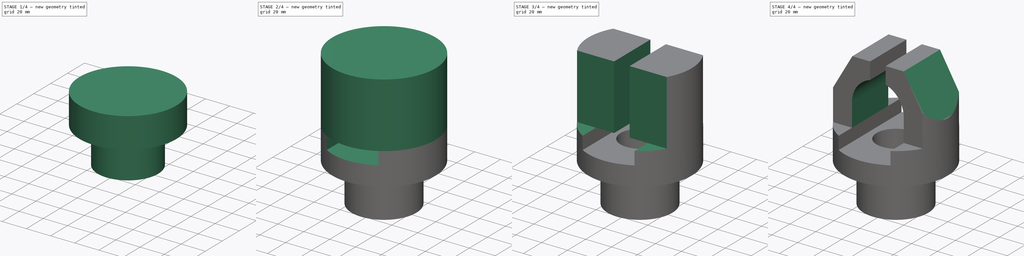
[diagram: build sequence overview — one tinted view per stage of 4, left to right]
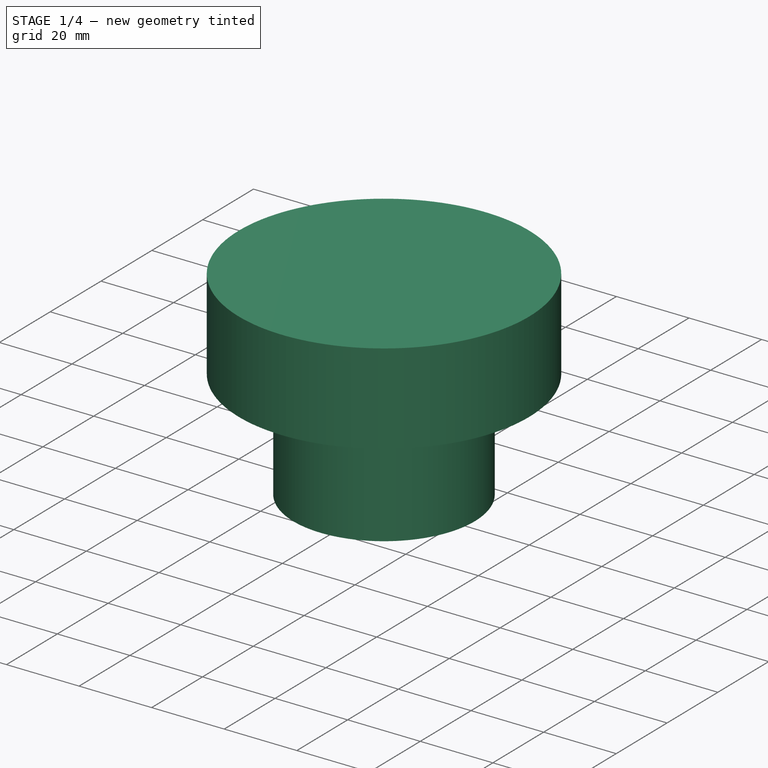
[diagram: stage 1 of 4 — iso view after this stage's code; geometry added in this stage tinted green]
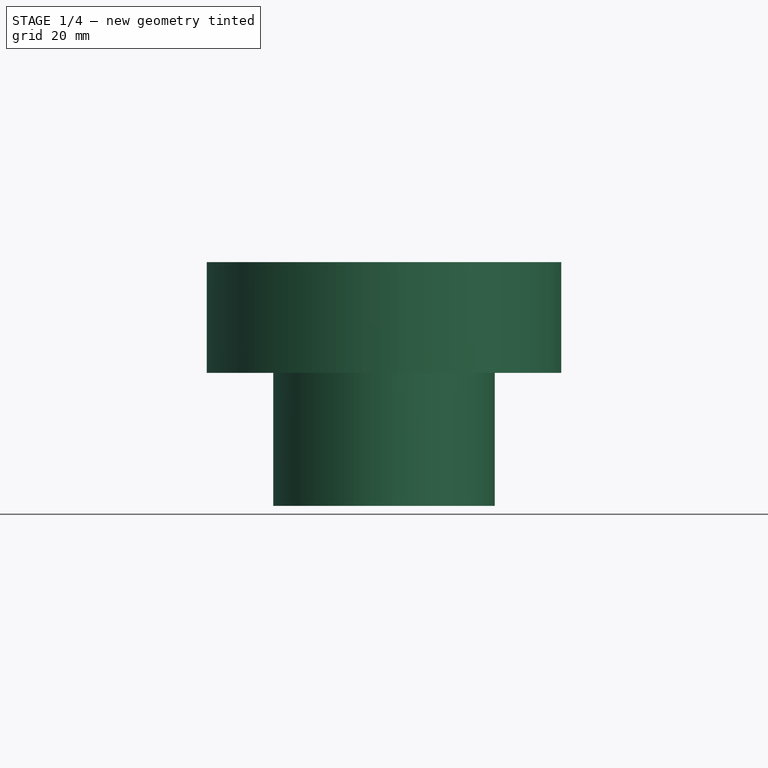
[diagram: stage 1 of 4 — front view after this stage's code; geometry added in this stage tinted green]
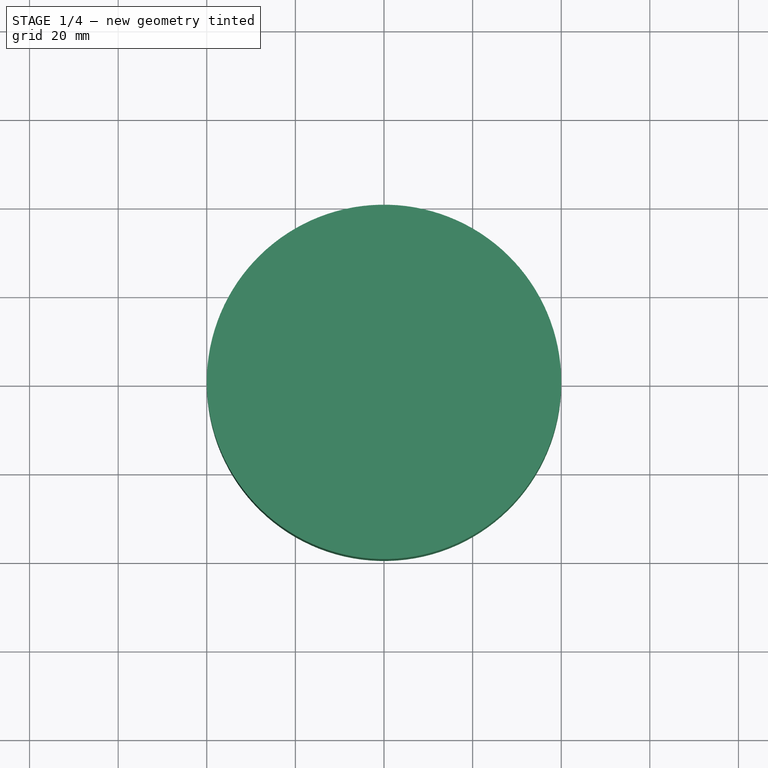
[diagram: stage 1 of 4 — top view after this stage's code; geometry added in this stage tinted green]
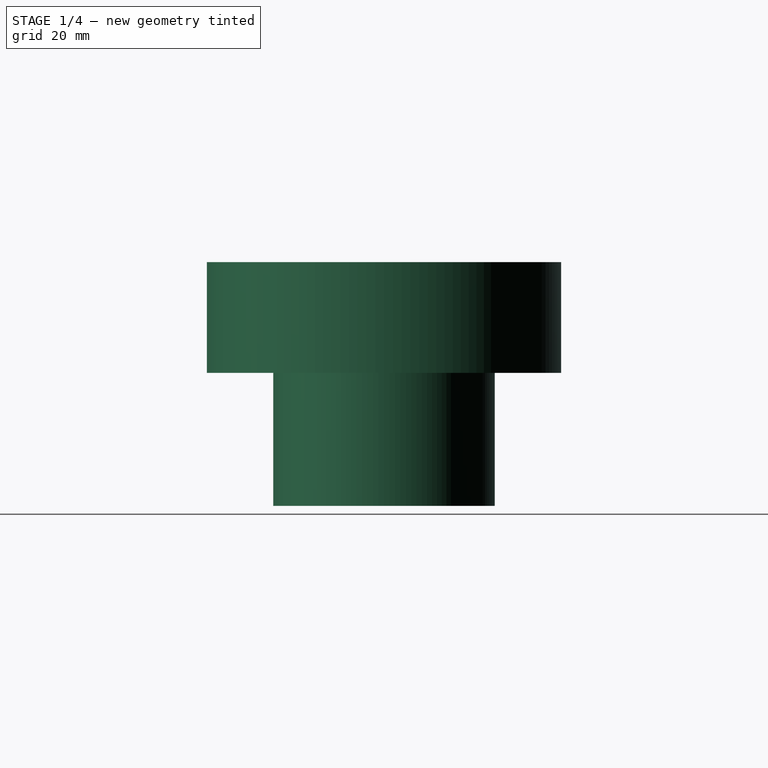
[diagram: stage 1 of 4 — right view after this stage's code; geometry added in this stage tinted green]
FCSTD DOCUMENT  (FreeCAD 0.16R)
Label: ejer11-3
License: All rights reserved
LicenseURL: http://en.wikipedia.org/wiki/All_rights_reserved
objects: Sketcher::SketchObject×10, PartDesign::Pocket×7, PartDesign::Pad×3
note: 30 computed .brp shape members not serialized (recipe doc carries the construction recipe); baked Part::Feature solids carry a one-line shape summary decoded from their .brp

FEATURE [Sketcher::SketchObject] Sketch
  sketch-geometry (1):
    g0: Circle CenterX=0 CenterY=0 CenterZ=0 NormalX=0 NormalY=0 NormalZ=1 Radius=25
  constraints (2):
    c: Coincident(g0,g-1)
    c: Radius(g0) = 25
FEATURE [PartDesign::Pad] Pad
  Length = 30
  Length2 = 100
  Sketch = -> Sketch
  Type = 0
FEATURE [Sketcher::SketchObject] Sketch001
  Placement = pos=(0,0,30) rot=(0,0,1;0rad)
  Support = -> Pad [Face3]
  sketch-geometry (1):
    g0: Circle CenterX=0 CenterY=0 CenterZ=0 NormalX=0 NormalY=0 NormalZ=1 Radius=40
  constraints (2):
    c: Coincident(g0,g-1)
    c: Radius(g0) = 40
FEATURE [PartDesign::Pad] Pad001
  Length = 25
  Length2 = 100
  Sketch = -> Sketch001
  Type = 0
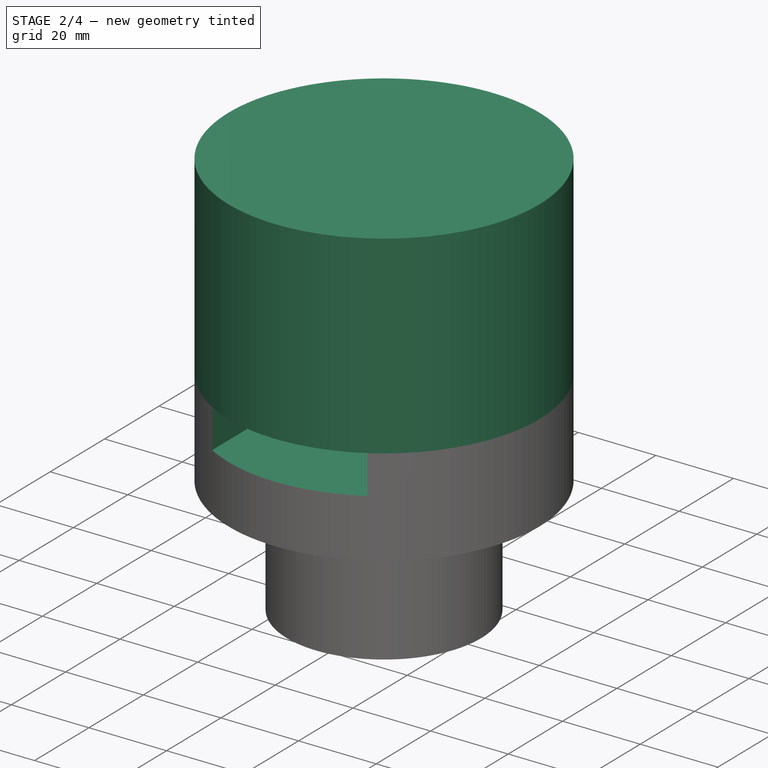
[diagram: stage 2 of 4 — iso view after this stage's code; geometry added in this stage tinted green]
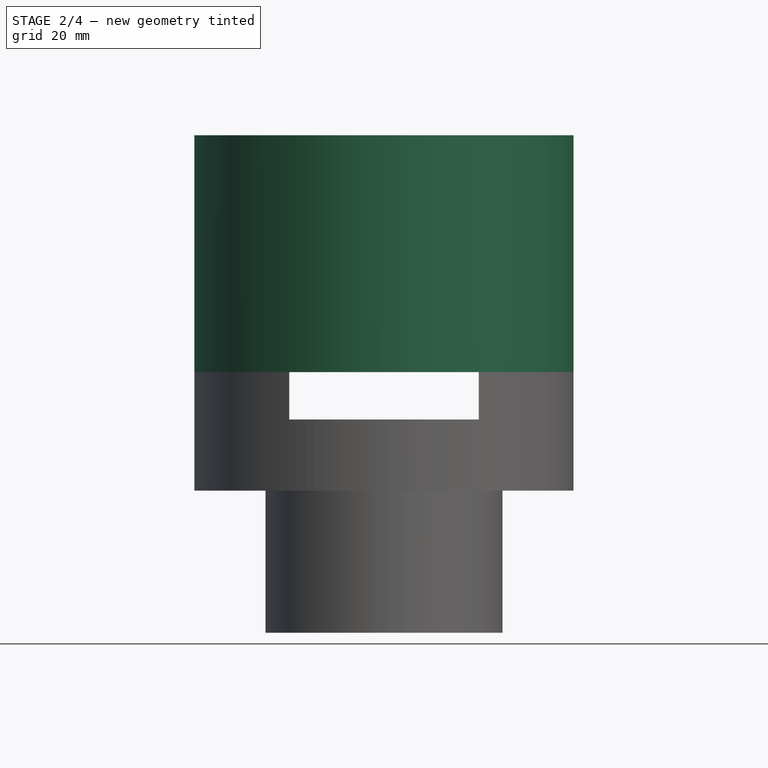
[diagram: stage 2 of 4 — front view after this stage's code; geometry added in this stage tinted green]
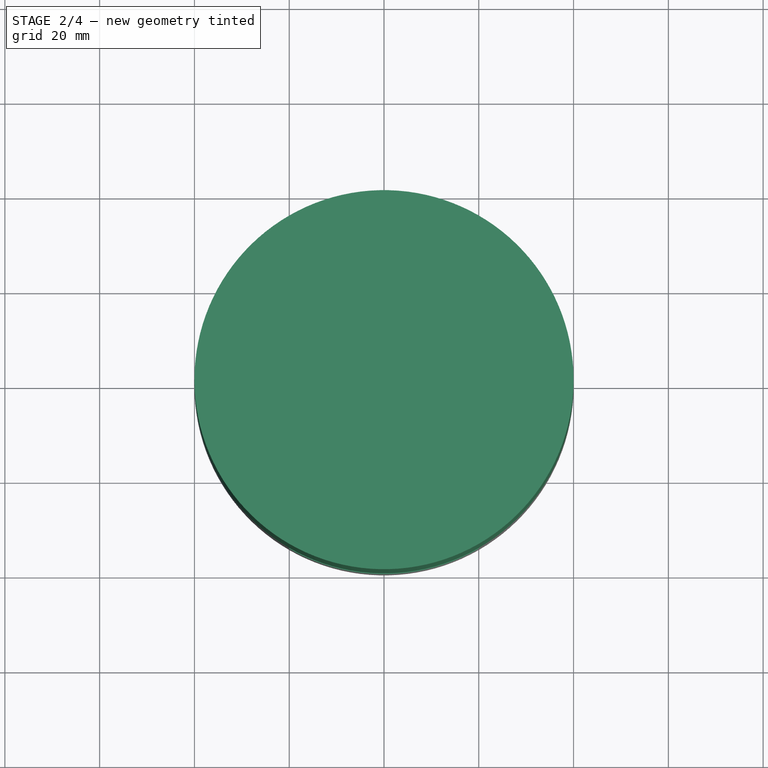
[diagram: stage 2 of 4 — top view after this stage's code; geometry added in this stage tinted green]
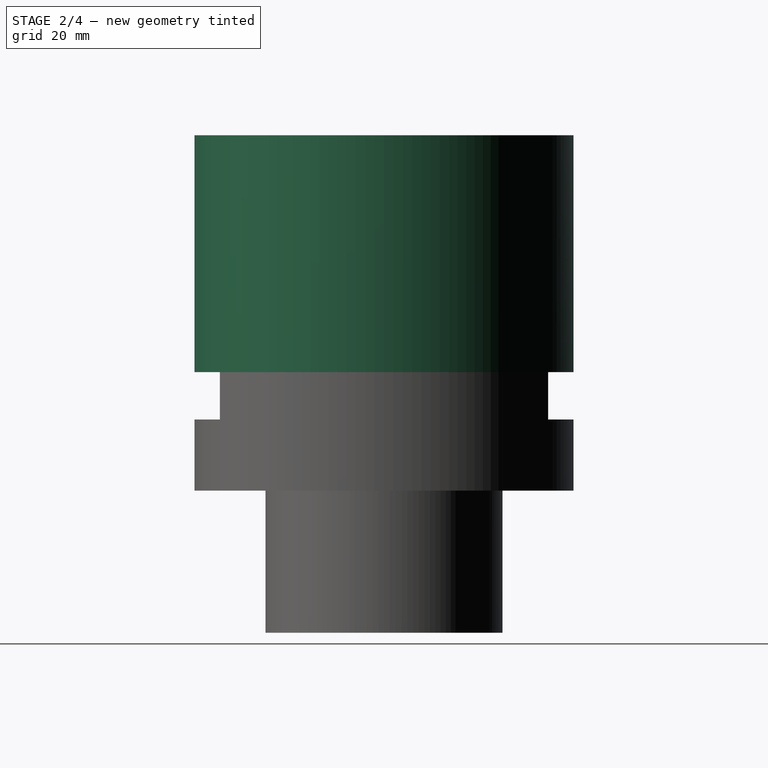
[diagram: stage 2 of 4 — right view after this stage's code; geometry added in this stage tinted green]
FEATURE [Sketcher::SketchObject] Sketch002
  Placement = pos=(0,0,55) rot=(0,0,1;0rad)
  Support = -> Pad001 [Face5]
  sketch-geometry (1):
    g0: Circle CenterX=0 CenterY=0 CenterZ=0 NormalX=0 NormalY=0 NormalZ=1 Radius=15
  constraints (2):
    c: Coincident(g0,g-1)
    c: Radius(g0) = 15
FEATURE [PartDesign::Pocket] Pocket
  Length = 5
  Sketch = -> Sketch002
  Type = 1
FEATURE [Sketcher::SketchObject] Sketch003
  Placement = pos=(0,0,55) rot=(0,0,1;0rad)
  Support = -> Pocket [Face5]
  sketch-geometry (4):
    g0: LineSegment StartX=-20 StartY=57.3467 StartZ=0 EndX=20 EndY=57.3467 EndZ=0
    g1: LineSegment StartX=20 StartY=57.3467 StartZ=0 EndX=20 EndY=-56.12 EndZ=0
    g2: LineSegment StartX=20 StartY=-56.12 StartZ=0 EndX=-20 EndY=-56.12 EndZ=0
    g3: LineSegment StartX=-20 StartY=-56.12 StartZ=0 EndX=-20 EndY=57.3467 EndZ=0
  constraints (10):
    c: Coincident(g0,g1)
    c: Coincident(g1,g2)
    c: Coincident(g2,g3)
    c: Coincident(g3,g0)
    c: Horizontal(g0)
    c: Horizontal(g2)
    c: Vertical(g1)
    c: Vertical(g3)
    c: Symmetric(g0,g0,g-2)
    c: DistanceX(g2,g2) = 40
FEATURE [PartDesign::Pocket] Pocket001
  Length = 10
  Sketch = -> Sketch003
  Type = 0
FEATURE [Sketcher::SketchObject] Sketch004
  Placement = pos=(0,0,55) rot=(0,0,1;0rad)
  Support = -> Pocket001 [Face9]
  sketch-geometry (1):
    g0: Circle CenterX=0 CenterY=0 CenterZ=0 NormalX=0 NormalY=0 NormalZ=1 Radius=40
  constraints (2):
    c: Coincident(g0,g-1)
    c: Radius(g0) = 40
FEATURE [PartDesign::Pad] Pad002
  Length = 50
  Length2 = 100
  Sketch = -> Sketch004
  Type = 0
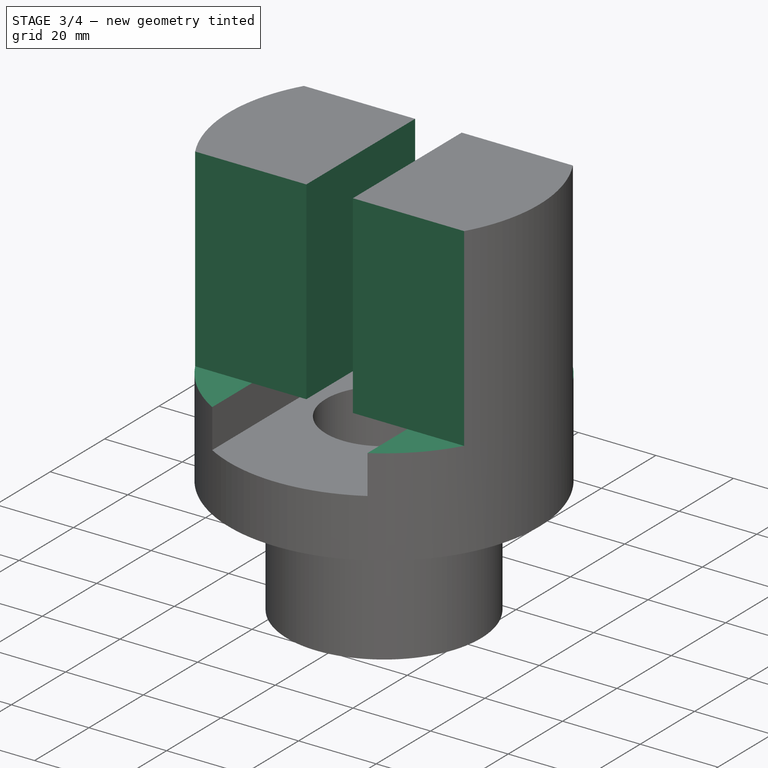
[diagram: stage 3 of 4 — iso view after this stage's code; geometry added in this stage tinted green]
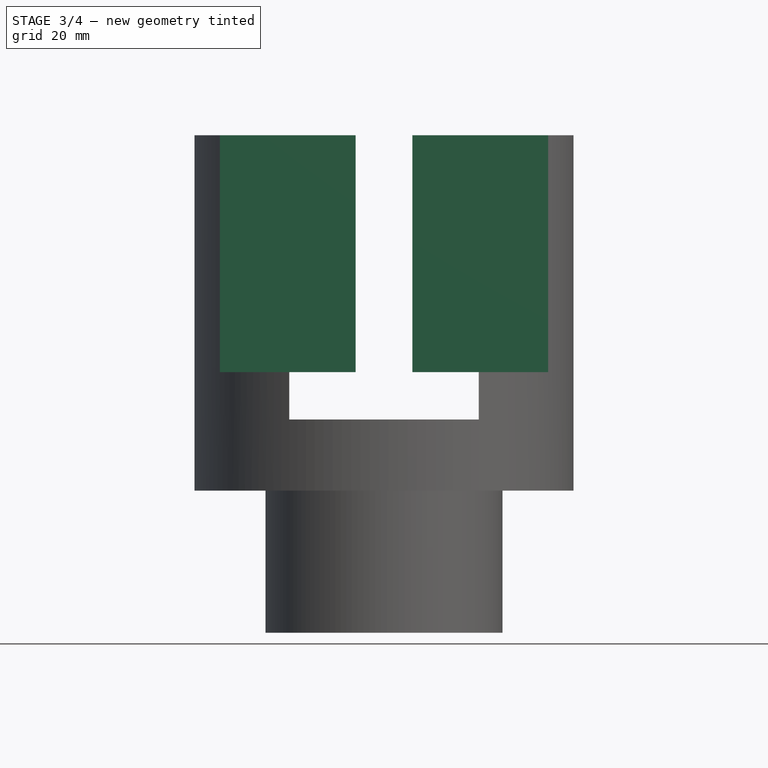
[diagram: stage 3 of 4 — front view after this stage's code; geometry added in this stage tinted green]
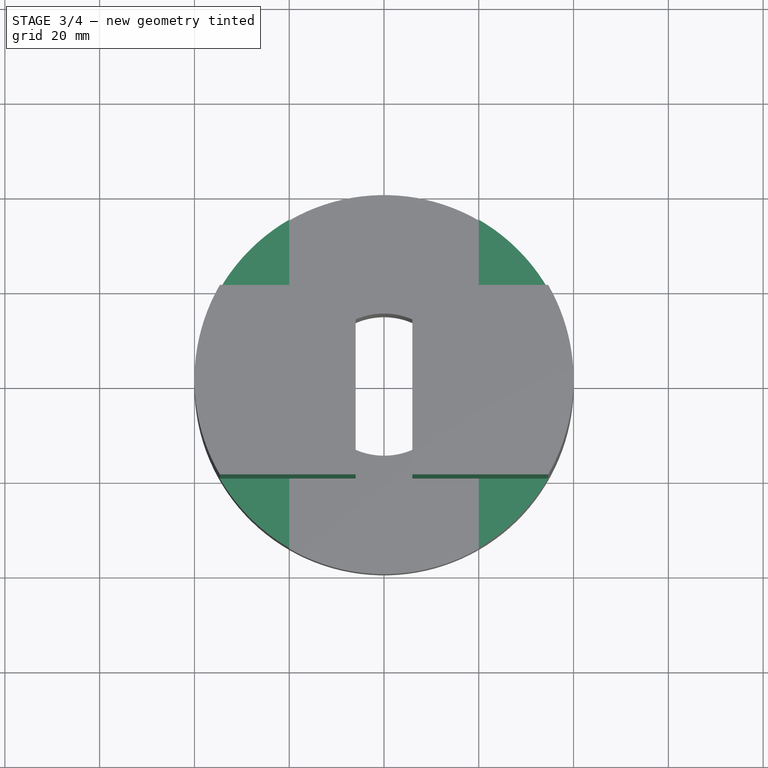
[diagram: stage 3 of 4 — top view after this stage's code; geometry added in this stage tinted green]
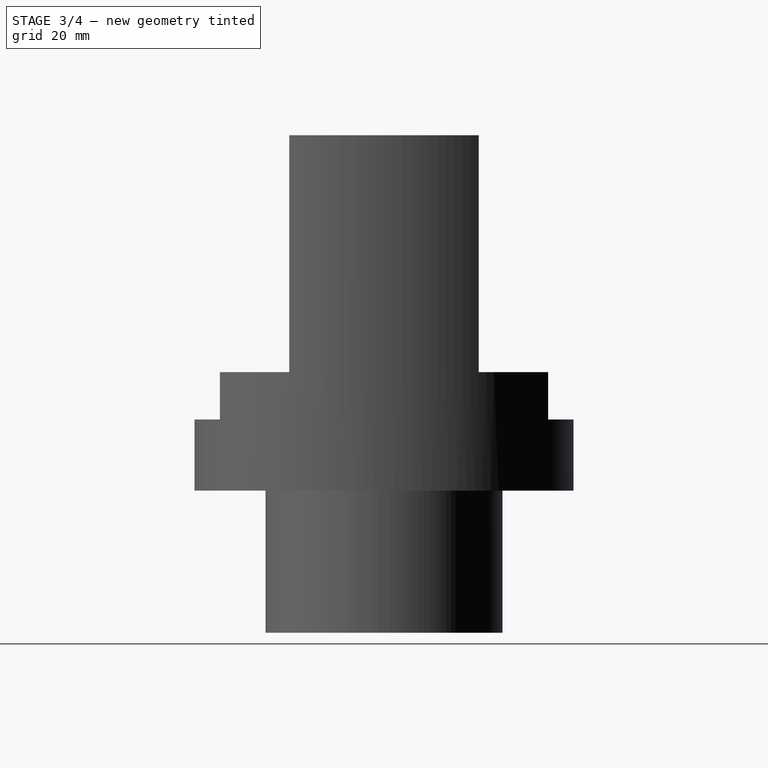
[diagram: stage 3 of 4 — right view after this stage's code; geometry added in this stage tinted green]
FEATURE [Sketcher::SketchObject] Sketch005
  Placement = pos=(0,0,105) rot=(0,0,1;0rad)
  Support = -> Pad002 [Face11]
  sketch-geometry (4):
    g0: LineSegment StartX=-45 StartY=-20 StartZ=0 EndX=45 EndY=-20 EndZ=0
    g1: LineSegment StartX=45 StartY=-20 StartZ=0 EndX=45 EndY=-42 EndZ=0
    g2: LineSegment StartX=45 StartY=-42 StartZ=0 EndX=-45 EndY=-42 EndZ=0
    g3: LineSegment StartX=-45 StartY=-42 StartZ=0 EndX=-45 EndY=-20 EndZ=0
  constraints (12):
    c: Coincident(g0,g1)
    c: Coincident(g1,g2)
    c: Coincident(g2,g3)
    c: Coincident(g3,g0)
    c: Horizontal(g0)
    c: Horizontal(g2)
    c: Vertical(g1)
    c: Vertical(g3)
    c: Symmetric(g0,g0,g-2)
    c: DistanceY(g1,g1) = 22
    c: DistanceX(g0,g0) = 90
    c: DistanceY(g0,g-1) = 20
FEATURE [PartDesign::Pocket] Pocket002
  Length = 5
  Sketch = -> Sketch005
  Type = 2
FEATURE [Sketcher::SketchObject] Sketch006
  Placement = pos=(0,-20,0) rot=(1,0,0;1.5708rad)
  Support = -> Pocket002 [Face15]
  sketch-geometry (4):
    g0: LineSegment StartX=-6 StartY=115.495 StartZ=0 EndX=6 EndY=115.495 EndZ=0
    g1: LineSegment StartX=6 StartY=115.495 StartZ=0 EndX=6 EndY=48.5422 EndZ=0
    g2: LineSegment StartX=6 StartY=48.5422 StartZ=0 EndX=-6 EndY=48.5422 EndZ=0
    g3: LineSegment StartX=-6 StartY=48.5422 StartZ=0 EndX=-6 EndY=115.495 EndZ=0
  constraints (10):
    c: Coincident(g0,g1)
    c: Coincident(g1,g2)
    c: Coincident(g2,g3)
    c: Coincident(g3,g0)
    c: Horizontal(g0)
    c: Horizontal(g2)
    c: Vertical(g1)
    c: Vertical(g3)
    c: Symmetric(g0,g0,g-2)
    c: DistanceX(g2,g2) = 12
FEATURE [PartDesign::Pocket] Pocket003
  Length = 5
  Sketch = -> Sketch006
  Type = 1
FEATURE [Sketcher::SketchObject] Sketch007
  Placement = pos=(0,0,105) rot=(0,0,1;0rad)
  Support = -> Pocket003 [Face19]
  sketch-geometry (4):
    g0: LineSegment StartX=-50.6516 StartY=42.876 StartZ=0 EndX=50.6516 EndY=42.876 EndZ=0
    g1: LineSegment StartX=50.6516 StartY=42.876 StartZ=0 EndX=50.6516 EndY=20 EndZ=0
    g2: LineSegment StartX=50.6516 StartY=20 StartZ=0 EndX=-50.6516 EndY=20 EndZ=0
    g3: LineSegment StartX=-50.6516 StartY=20 StartZ=0 EndX=-50.6516 EndY=42.876 EndZ=0
  constraints (10):
    c: Coincident(g0,g1)
    c: Coincident(g1,g2)
    c: Coincident(g2,g3)
    c: Coincident(g3,g0)
    c: Horizontal(g0)
    c: Horizontal(g2)
    c: Vertical(g1)
    c: Vertical(g3)
    c: Symmetric(g0,g0,g-2)
    c: DistanceY(g-1,g1) = 20
FEATURE [PartDesign::Pocket] Pocket004
  Length = 5
  Sketch = -> Sketch007
  Type = 2
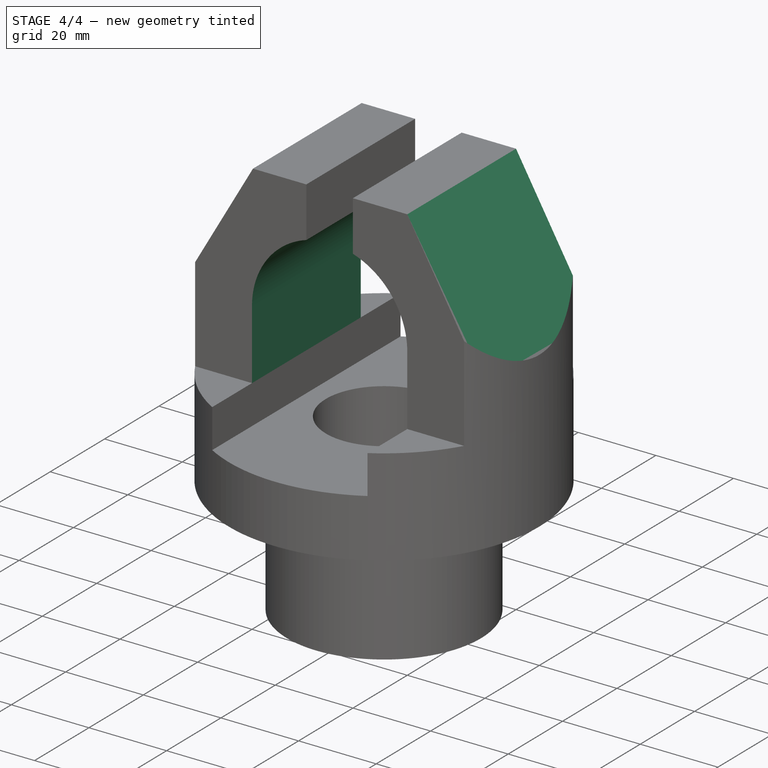
[diagram: stage 4 of 4 — iso view after this stage's code; geometry added in this stage tinted green]
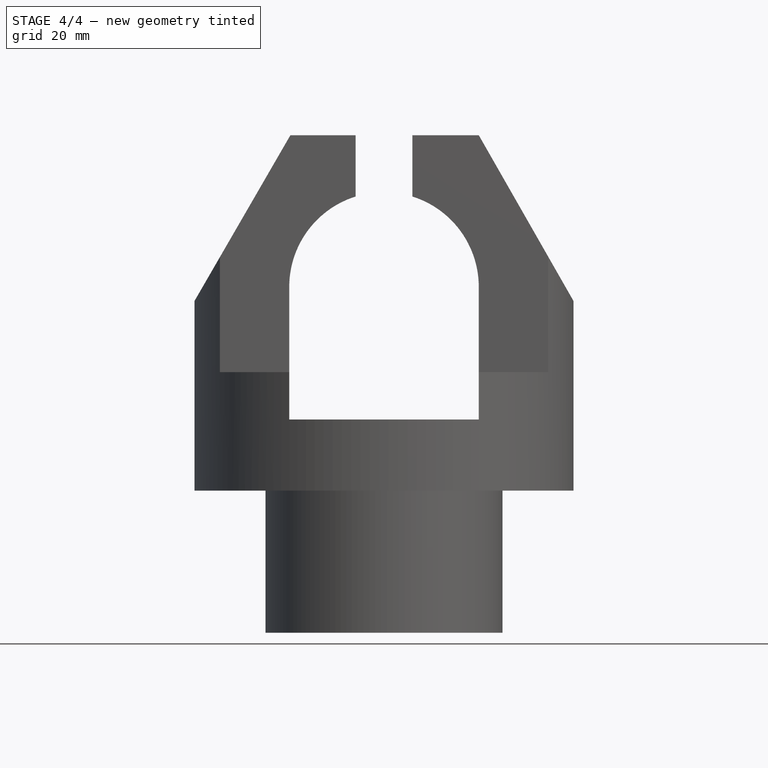
[diagram: stage 4 of 4 — front view after this stage's code; geometry added in this stage tinted green]
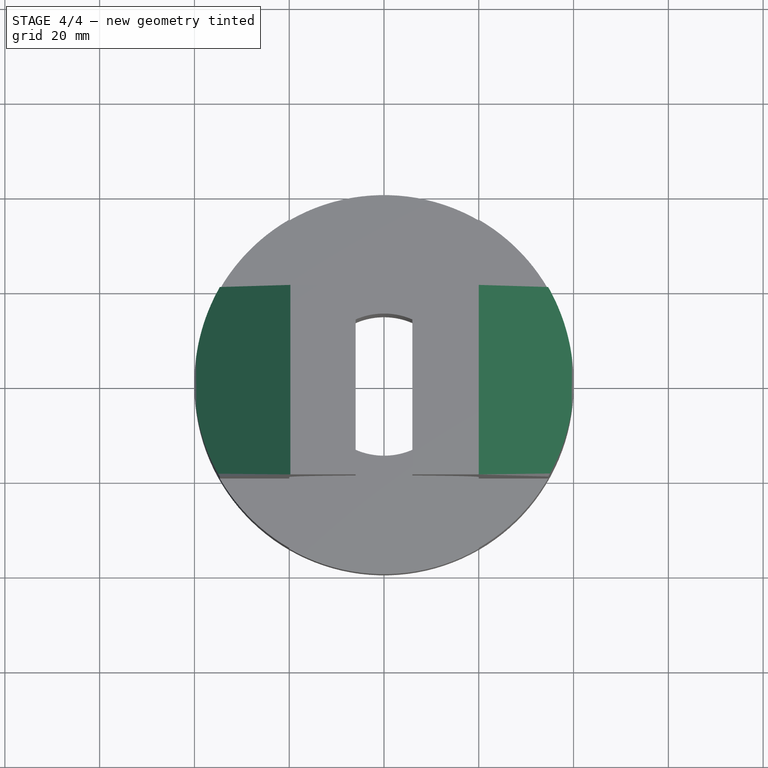
[diagram: stage 4 of 4 — top view after this stage's code; geometry added in this stage tinted green]
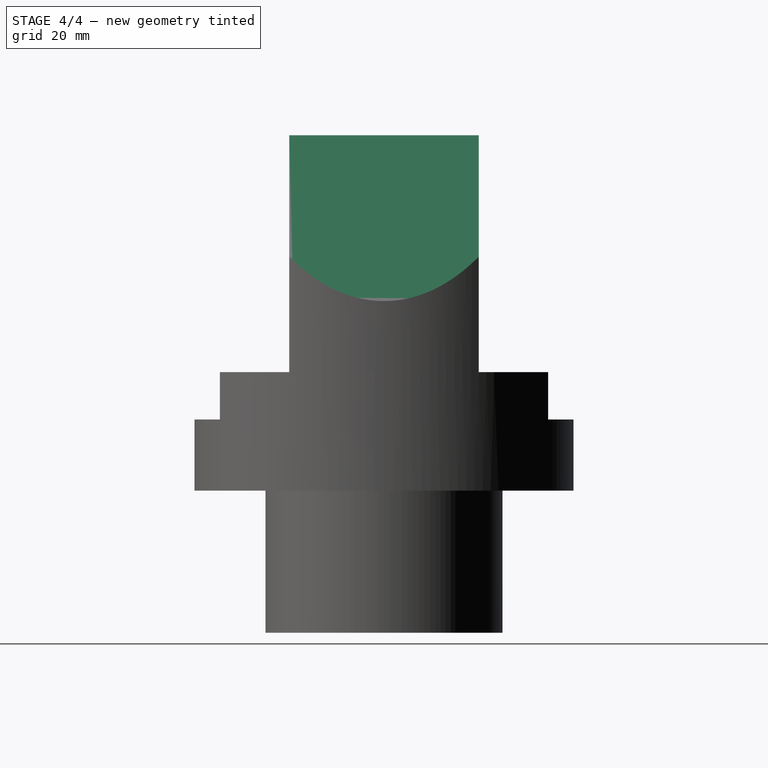
[diagram: stage 4 of 4 — right view after this stage's code; geometry added in this stage tinted green]
FEATURE [Sketcher::SketchObject] Sketch008
  Placement = pos=(0,-20,0) rot=(1,0,0;1.5708rad)
  Support = -> Pocket004 [Face20]
  sketch-geometry (10):
    g0: LineSegment [constr] StartX=40 StartY=105 StartZ=0 EndX=40 EndY=0 EndZ=0
    g1: LineSegment [constr] StartX=40 StartY=0 StartZ=0 EndX=40 EndY=70 EndZ=0
    g2: LineSegment [constr] StartX=-40 StartY=0 StartZ=0 EndX=-40 EndY=70 EndZ=0
    g3: LineSegment [constr] StartX=-40 StartY=0 StartZ=0 EndX=-40 EndY=105 EndZ=0
    g4: LineSegment StartX=-19.7483 StartY=105 StartZ=0 EndX=-40 EndY=70 EndZ=0
    g5: LineSegment StartX=-40 StartY=70 StartZ=0 EndX=-40 EndY=105 EndZ=0
    g6: LineSegment StartX=-19.7483 StartY=105 StartZ=0 EndX=-40 EndY=105 EndZ=0
    g7: LineSegment StartX=20 StartY=105 StartZ=0 EndX=40 EndY=70 EndZ=0
    g8: LineSegment StartX=40 StartY=70 StartZ=0 EndX=40 EndY=105 EndZ=0
    g9: LineSegment StartX=40 StartY=105 StartZ=0 EndX=20 EndY=105 EndZ=0
  constraints (23):
    c: Vertical(g0)
    c: DistanceY(g-1,g0) = 0
    c: DistanceY(g-1,g0) = 105
    c: DistanceX(g-1,g0) = 40
    c: Coincident(g1,g0)
    c: Vertical(g1)
    c: DistanceY(g0,g1) = 70
    c: PointOnObject(g2,g-1)
    c: Vertical(g2)
    c: DistanceY(g2,g2) = 70
    c: DistanceX(g2,g-1) = 40
    c: Coincident(g3,g2)
    c: Vertical(g3)
    c: DistanceY(g2,g3) = 105
    c: Coincident(g4,g2)
    c: Coincident(g4,g5)
    c: Coincident(g5,g3)
    c: Coincident(g6,g3)
    c: Horizontal(g6)
    c: Coincident(g7,g1)
    c: Coincident(g1,g8)
    c: Coincident(g8,g0)
    c: Coincident(g8,g9)
FEATURE [PartDesign::Pocket] Pocket005
  Length = 5
  Sketch = -> Sketch008
  Type = 1
FEATURE [Sketcher::SketchObject] Sketch009
  Placement = pos=(0,-20,0) rot=(1,0,0;1.5708rad)
  Support = -> Pocket005 [Face20]
  sketch-geometry (4):
    g0: LineSegment StartX=-20 StartY=45 StartZ=0 EndX=20 EndY=45 EndZ=0
    g1: LineSegment StartX=20 StartY=45 StartZ=0 EndX=20 EndY=72.9813 EndZ=0
    g2: LineSegment StartX=-20 StartY=45 StartZ=0 EndX=-20 EndY=72.9813 EndZ=0
    g3: ArcOfCircle CenterX=0 CenterY=72.9813 CenterZ=0 NormalX=0 NormalY=0 NormalZ=1 Radius=20 StartAngle=1.83085e-06 EndAngle=3.14159
  constraints (12):
    c: Horizontal(g0)
    c: Coincident(g0,g1)
    c: Vertical(g1)
    c: Coincident(g0,g2)
    c: DistanceY(g-1,g0) = 45
    c: Symmetric(g0,g0,g-2)
    c: DistanceX(g0,g0) = 40
    c: Coincident(g3,g1)
    c: Coincident(g3,g2)
    c: Radius(g3) = 20
    c: Tangent(g2,g3)
    c: Tangent(g1,g3)
FEATURE [PartDesign::Pocket] Pocket006
  Length = 5
  Sketch = -> Sketch009
  Type = 1
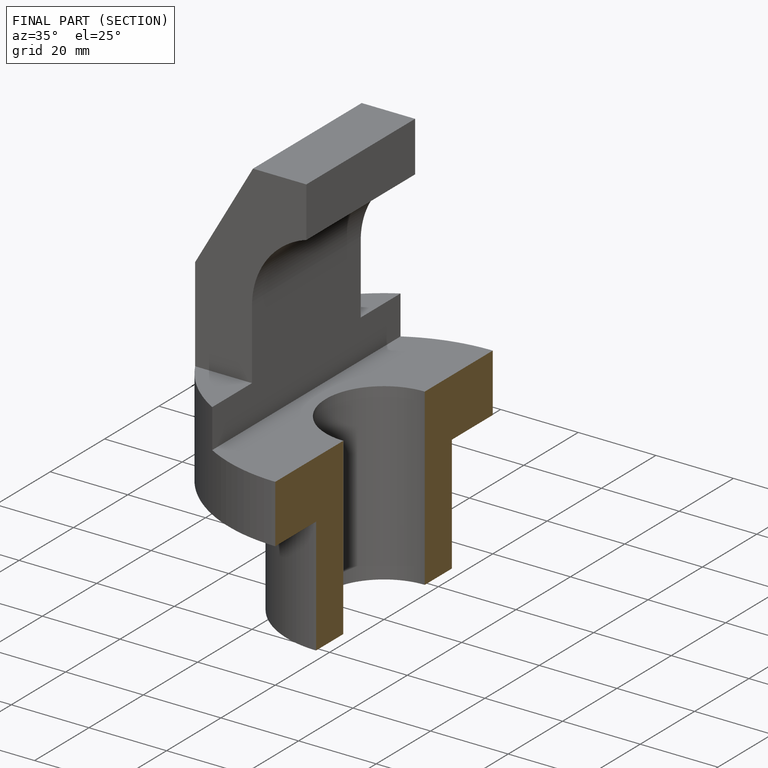
[diagram: finished part — half-section view (interior)]
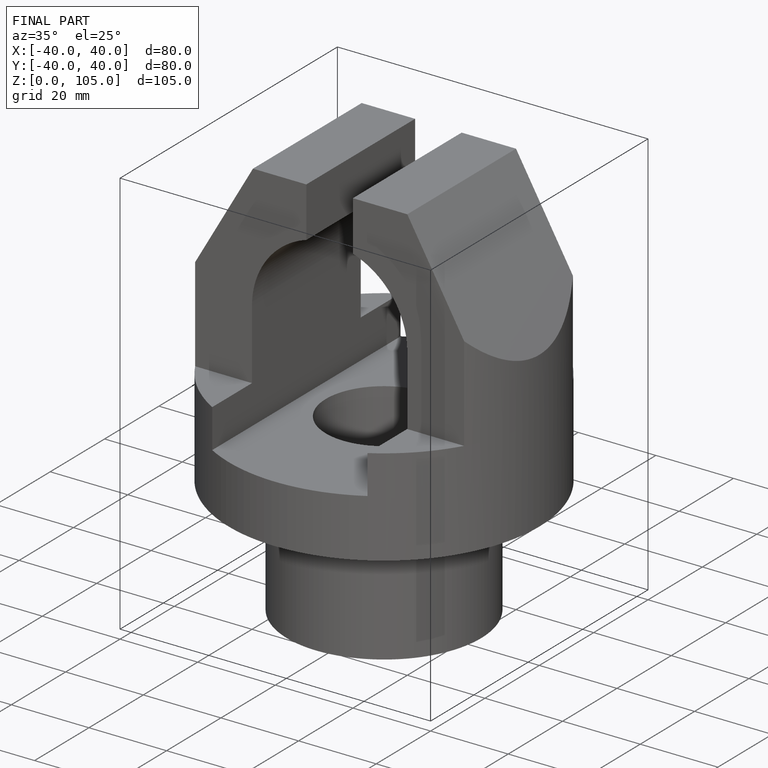
[diagram: finished part — iso view with bounding-box wireframe]
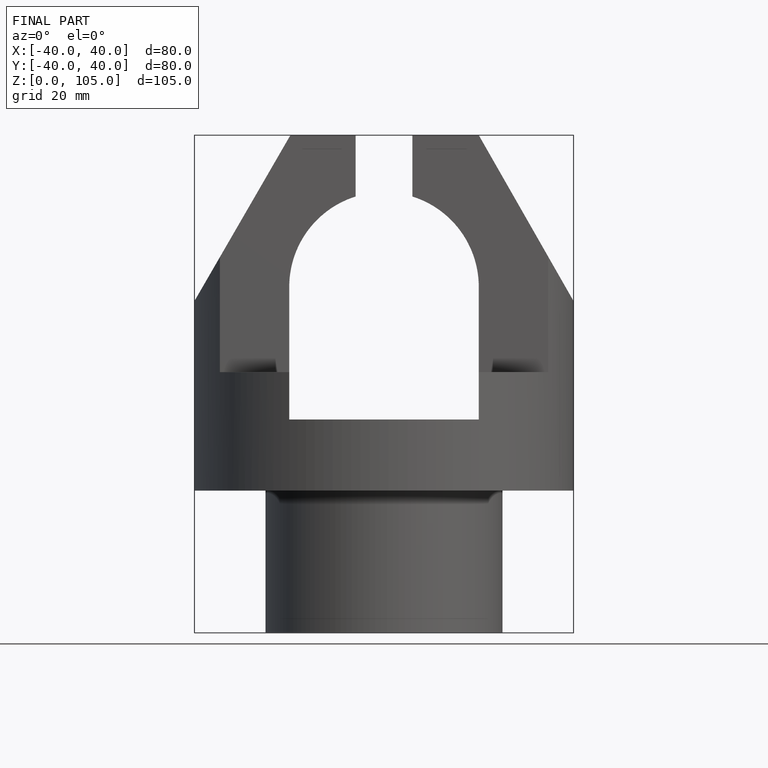
[diagram: finished part — front view with bounding-box wireframe]
